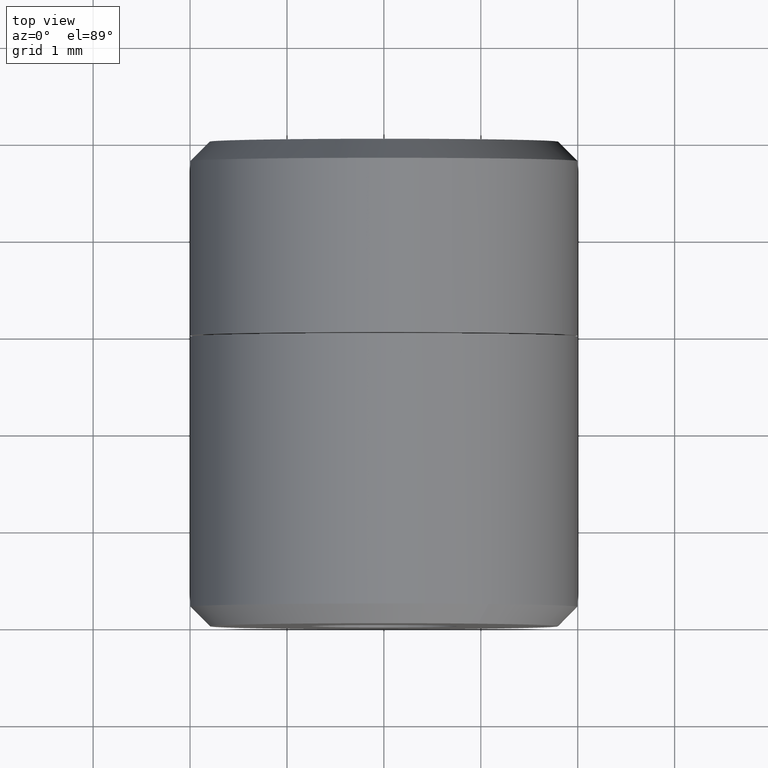
[diagram: clean part render]
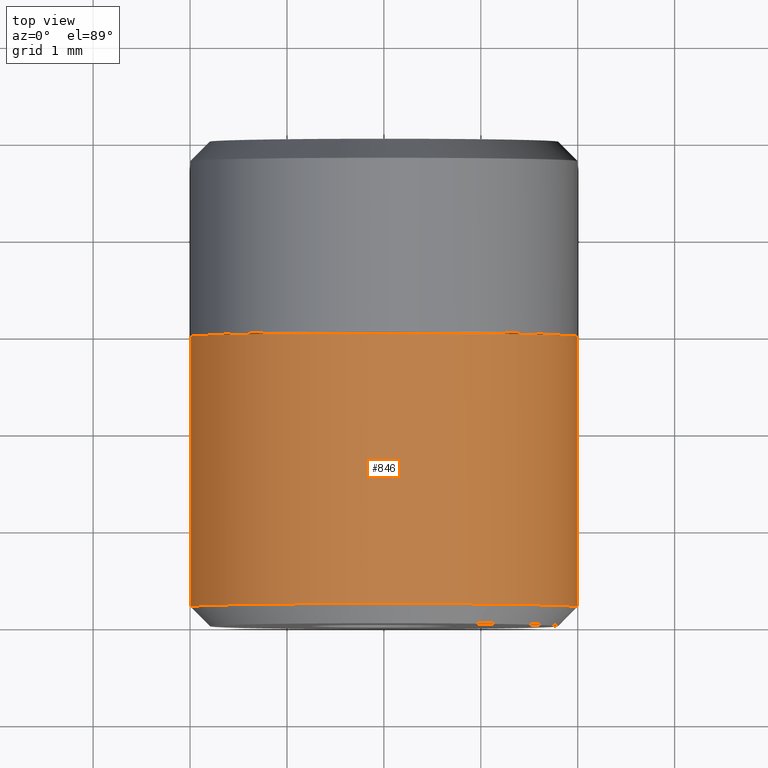
[diagram: same view with one face highlighted and labeled with its STEP entity id]
A machine part, top view. The second image highlights one B-rep face of the part: STEP entity #846.
In plain terms, the highlighted face is a freeform B-spline surface patch.
Its self-contained STEP definition (entity closure, byte-faithful):
#580=CARTESIAN_POINT('',(1.986019150225537,0.200004000000021,-0.236067649068556));
#581=VERTEX_POINT('',#580);
#582=CARTESIAN_POINT('',(1.075701586892890,0.200004000000050,1.686080097728519));
#583=VERTEX_POINT('',#582);
#584=CARTESIAN_POINT('',(1.986019150225537,0.200004000000021,-0.236067649068556));
#585=CARTESIAN_POINT('',(2.000000000000000,0.200004000000021,-0.118447410387395));
#586=CARTESIAN_POINT('',(2.0,0.200004000000021,-7.277231E-015));
#587=CARTESIAN_POINT('',(2.000000000000000,0.200004000000021,1.096387312028698));
#588=CARTESIAN_POINT('',(1.075701586892890,0.200004000000050,1.686080097728518));
#596=(BOUNDED_CURVE()B_SPLINE_CURVE(2,(#584,#585,#586,#587,#588),.UNSPECIFIED.,.F.,.U.)B_SPLINE_CURVE_WITH_KNOTS((3,2,3),(0.229562613115593,0.250000000000000,0.407950112627485),.UNSPECIFIED.)CURVE()GEOMETRIC_REPRESENTATION_ITEM()RATIONAL_B_SPLINE_CURVE((0.956027027809680,0.976056111885160,1.0,0.814949932402354,0.863729296954884))REPRESENTATION_ITEM(''));
#597=EDGE_CURVE('',#581,#583,#596,.T.);
#640=CARTESIAN_POINT('',(-1.993834667466275,0.200004000000070,0.156918191456064));
#641=VERTEX_POINT('',#640);
#647=CARTESIAN_POINT('',(-1.996269638693471,0.200004000000021,0.122096394828707));
#648=VERTEX_POINT('',#647);
#649=CARTESIAN_POINT('',(-1.993834667466276,0.200004000000070,0.156918191456064));
#650=CARTESIAN_POINT('',(-1.995204125566377,0.200004000000021,0.139517576458017));
#651=CARTESIAN_POINT('',(-1.996269638693471,0.200004000000021,0.122096394828706));
#659=(BOUNDED_CURVE()B_SPLINE_CURVE(2,(#649,#650,#651),.UNSPECIFIED.,.F.,.U.)B_SPLINE_CURVE_WITH_KNOTS((3,3),(0.736331300632702,0.739333080526192),.UNSPECIFIED.)CURVE()GEOMETRIC_REPRESENTATION_ITEM()RATIONAL_B_SPLINE_CURVE((0.969723356171680,0.972855598990357,0.976072295178941))REPRESENTATION_ITEM(''));
#660=EDGE_CURVE('',#641,#648,#659,.T.);
#713=CARTESIAN_POINT('',(0.0,0.200004000000021,1.999999999999993));
#714=VERTEX_POINT('',#713);
#715=CARTESIAN_POINT('',(1.075701586892890,0.200004000000050,1.686080097728518));
#716=CARTESIAN_POINT('',(0.583656110759131,0.200004000000021,1.999999999999993));
#717=CARTESIAN_POINT('',(0.0,0.200004000000021,1.999999999999993));
#725=(BOUNDED_CURVE()B_SPLINE_CURVE(2,(#715,#716,#717),.UNSPECIFIED.,.F.,.U.)B_SPLINE_CURVE_WITH_KNOTS((3,3),(0.407950112627485,0.500000000000000),.UNSPECIFIED.)CURVE()GEOMETRIC_REPRESENTATION_ITEM()RATIONAL_B_SPLINE_CURVE((0.863729296954884,0.892156848784194,1.0))REPRESENTATION_ITEM(''));
#726=EDGE_CURVE('',#583,#714,#725,.T.);
#728=CARTESIAN_POINT('',(0.0,0.200004000000021,1.999999999999993));
#729=CARTESIAN_POINT('',(-1.848780983315709,0.200004000000021,1.999999999999993));
#730=CARTESIAN_POINT('',(-1.993834667466276,0.200004000000070,0.156918191456064));
#738=(BOUNDED_CURVE()B_SPLINE_CURVE(2,(#728,#729,#730),.UNSPECIFIED.,.F.,.U.)B_SPLINE_CURVE_WITH_KNOTS((3,3),(0.500000000000000,0.736331300632702),.UNSPECIFIED.)CURVE()GEOMETRIC_REPRESENTATION_ITEM()RATIONAL_B_SPLINE_CURVE((1.0,0.723120658605273,0.969723356171679))REPRESENTATION_ITEM(''));
#739=EDGE_CURVE('',#714,#641,#738,.T.);
#774=CARTESIAN_POINT('',(1.986019052727332,3.059749900000001,-0.236068469313524));
#775=CARTESIAN_POINT('',(1.992775230897211,3.059749900000001,-0.179229457275963));
#776=CARTESIAN_POINT('',(1.996269596843733,3.059749900000000,-0.122097079069721));
#777=CARTESIAN_POINT('',(2.118366675913447,3.059749900000000,1.874172517774012));
#778=CARTESIAN_POINT('',(0.122097079069714,3.059749900000000,1.996269596843726));
#779=CARTESIAN_POINT('',(-1.874172517774020,3.059749900000000,2.118366675913440));
#780=CARTESIAN_POINT('',(-1.996269596843733,3.059749900000000,0.122097079069707));
#781=CARTESIAN_POINT('',(1.986019052727332,0.128510352500022,-0.236068469313524));
#782=CARTESIAN_POINT('',(1.992775230897211,0.128510352500021,-0.179229457275963));
#783=CARTESIAN_POINT('',(1.996269596843733,0.128510352500021,-0.122097079069721));
#784=CARTESIAN_POINT('',(2.118366675913447,0.128510352500022,1.874172517774012));
#785=CARTESIAN_POINT('',(0.122097079069714,0.128510352500021,1.996269596843726));
#786=CARTESIAN_POINT('',(-1.874172517774020,0.128510352500022,2.118366675913440));
#787=CARTESIAN_POINT('',(-1.996269596843733,0.128510352500021,0.122097079069707));
#795=(BOUNDED_SURFACE()B_SPLINE_SURFACE(2,1,((#774,#781),(#775,#782),(#776,#783),(#777,#784),(#778,#785),(#779,#786),(#780,#787)),.UNSPECIFIED.,.F.,.F.,.U.)B_SPLINE_SURFACE_WITH_KNOTS((3,2,2,3),(2,2),(0.0,0.132548339959391,3.446256838944150,6.759965337928910),(0.0,2.931239547499979),.UNSPECIFIED.)GEOMETRIC_REPRESENTATION_ITEM()RATIONAL_B_SPLINE_SURFACE(((0.977505800795127,0.977505800795127),(0.988284271247462,0.988284271247462),(1.0,1.0),(0.707106781186548,0.707106781186548),(1.0,1.0),(0.707106781186548,0.707106781186548),(1.0,1.0)))REPRESENTATION_ITEM('')SURFACE());
#796=CARTESIAN_POINT('',(1.986019151415325,2.990000000000002,-0.236067639058931));
#797=VERTEX_POINT('',#796);
#798=CARTESIAN_POINT('',(0.0,2.990000000000000,1.999999999999993));
#799=VERTEX_POINT('',#798);
#800=CARTESIAN_POINT('',(1.986019151415325,2.990000000000002,-0.236067639058931));
#801=CARTESIAN_POINT('',(2.000000000000000,2.990000000000000,-0.118447400271951));
#802=CARTESIAN_POINT('',(2.0,2.990000000000000,-7.277231E-015));
#803=CARTESIAN_POINT('',(2.000000000000000,2.990000000000001,1.999999999999993));
#804=CARTESIAN_POINT('',(0.0,2.990000000000000,1.999999999999993));
#812=(BOUNDED_CURVE()B_SPLINE_CURVE(2,(#800,#801,#802,#803,#804),.UNSPECIFIED.,.F.,.U.)B_SPLINE_CURVE_WITH_KNOTS((3,2,3),(0.229562614819161,0.250000000000000,0.500000000000000),.UNSPECIFIED.)CURVE()GEOMETRIC_REPRESENTATION_ITEM()RATIONAL_B_SPLINE_CURVE((0.956027031148748,0.976056113881015,1.0,0.707106781186548,1.0))REPRESENTATION_ITEM(''));
#813=EDGE_CURVE('',#797,#799,#812,.T.);
#814=ORIENTED_EDGE('',*,*,#813,.T.);
#815=CARTESIAN_POINT('',(-1.996269639204239,2.990000000000001,0.122096386477620));
#816=VERTEX_POINT('',#815);
#817=CARTESIAN_POINT('',(0.0,2.990000000000000,1.999999999999993));
#818=CARTESIAN_POINT('',(-1.881413441737483,2.990000000000001,1.999999999999994));
#819=CARTESIAN_POINT('',(-1.996269639204239,2.990000000000002,0.122096386477620));
#827=(BOUNDED_CURVE()B_SPLINE_CURVE(2,(#817,#818,#819),.UNSPECIFIED.,.F.,.U.)B_SPLINE_CURVE_WITH_KNOTS((3,3),(0.500000000000000,0.739333081969839),.UNSPECIFIED.)CURVE()GEOMETRIC_REPRESENTATION_ITEM()RATIONAL_B_SPLINE_CURVE((1.0,0.719603853013240,0.976072298272954))REPRESENTATION_ITEM(''));
#828=EDGE_CURVE('',#799,#816,#827,.T.);
#829=ORIENTED_EDGE('',*,*,#828,.T.);
#830=CARTESIAN_POINT('',(-1.996269639204239,2.990000000000001,0.122096386477620));
#831=CARTESIAN_POINT('',(-1.996269638693471,0.200004000000021,0.122096394828707));
#832=QUASI_UNIFORM_CURVE('',1,(#830,#831),.UNSPECIFIED.,.F.,.U.);
#833=EDGE_CURVE('',#816,#648,#832,.T.);
#834=ORIENTED_EDGE('',*,*,#833,.T.);
#835=ORIENTED_EDGE('',*,*,#660,.F.);
#836=ORIENTED_EDGE('',*,*,#739,.F.);
#837=ORIENTED_EDGE('',*,*,#726,.F.);
#838=ORIENTED_EDGE('',*,*,#597,.F.);
#839=CARTESIAN_POINT('',(1.986019151415325,2.990000000000002,-0.236067639058931));
#840=CARTESIAN_POINT('',(1.986019150225537,0.200004000000021,-0.236067649068556));
#841=QUASI_UNIFORM_CURVE('',1,(#839,#840),.UNSPECIFIED.,.F.,.U.);
#842=EDGE_CURVE('',#797,#581,#841,.T.);
#843=ORIENTED_EDGE('',*,*,#842,.F.);
#844=EDGE_LOOP('',(#814,#829,#834,#835,#836,#837,#838,#843));
#845=FACE_OUTER_BOUND('',#844,.T.);
#846=ADVANCED_FACE('',(#845),#795,.T.);